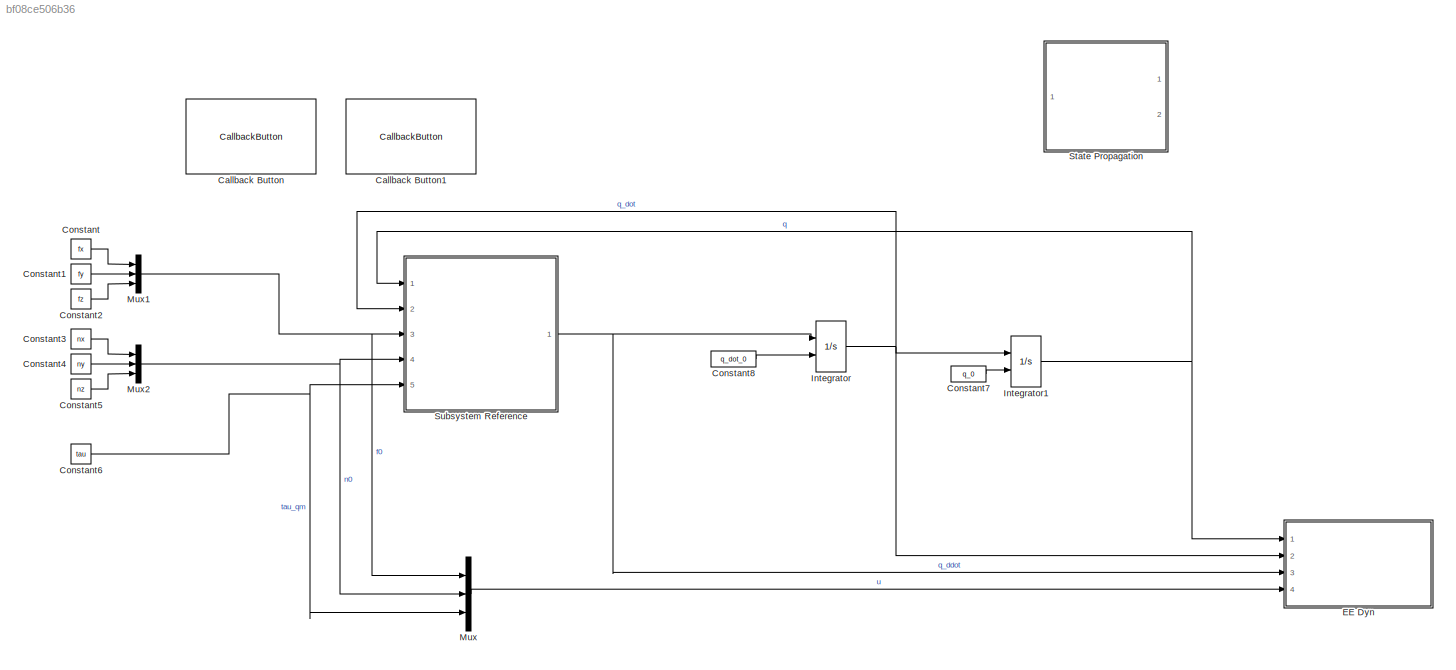
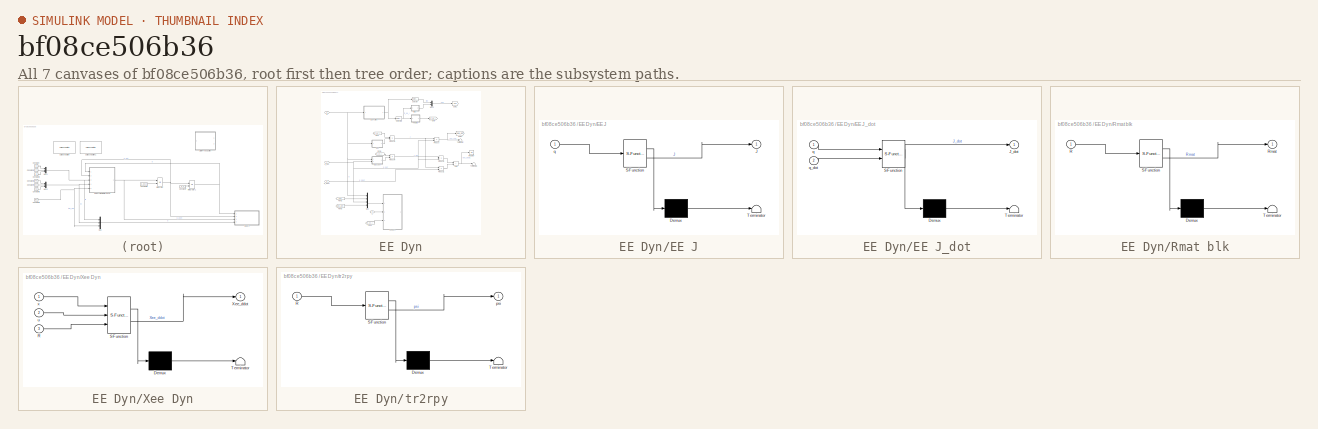
[diagram: thumbnail index - all 7 canvases of the model, root first then tree order]
MODEL slx_bf08ce506b36
KIND model
CONFIG AbsTol = auto
CONFIG EnableMultiTasking = off
CONFIG FixedStep = 0.01
CONFIG MaxStep = auto
CONFIG MinStep = auto
CONFIG RelTol = 1e-3
CONFIG SampleTimeConstraint = Unconstrained
CONFIG SolverName = ode23s
CONFIG StartTime = 0.0
CONFIG StopTime = 7
BLOCK [CallbackButton] Callback Button
  ButtonText = Load SpaceRobot
  ClickFcn = load('SC_2DoF.mat')\nsc.homeConfig;
BLOCK [CallbackButton] Callback Button1
  ButtonText = Animate results
  ClickFcn = close all\nsr.animate(out.q, 'fps', 17, 'rate', 1);
BLOCK [Constant] Constant
  Value = fx
BLOCK [Constant] Constant1
  Value = fy
BLOCK [Constant] Constant2
  Value = fz
BLOCK [Constant] Constant3
  Value = nx
BLOCK [Constant] Constant4
  Value = ny
BLOCK [Constant] Constant5
  Value = nz
BLOCK [Constant] Constant6
  Value = tau
BLOCK [Constant] Constant7
  Value = q_0
BLOCK [Constant] Constant8
  Value = q_dot_0
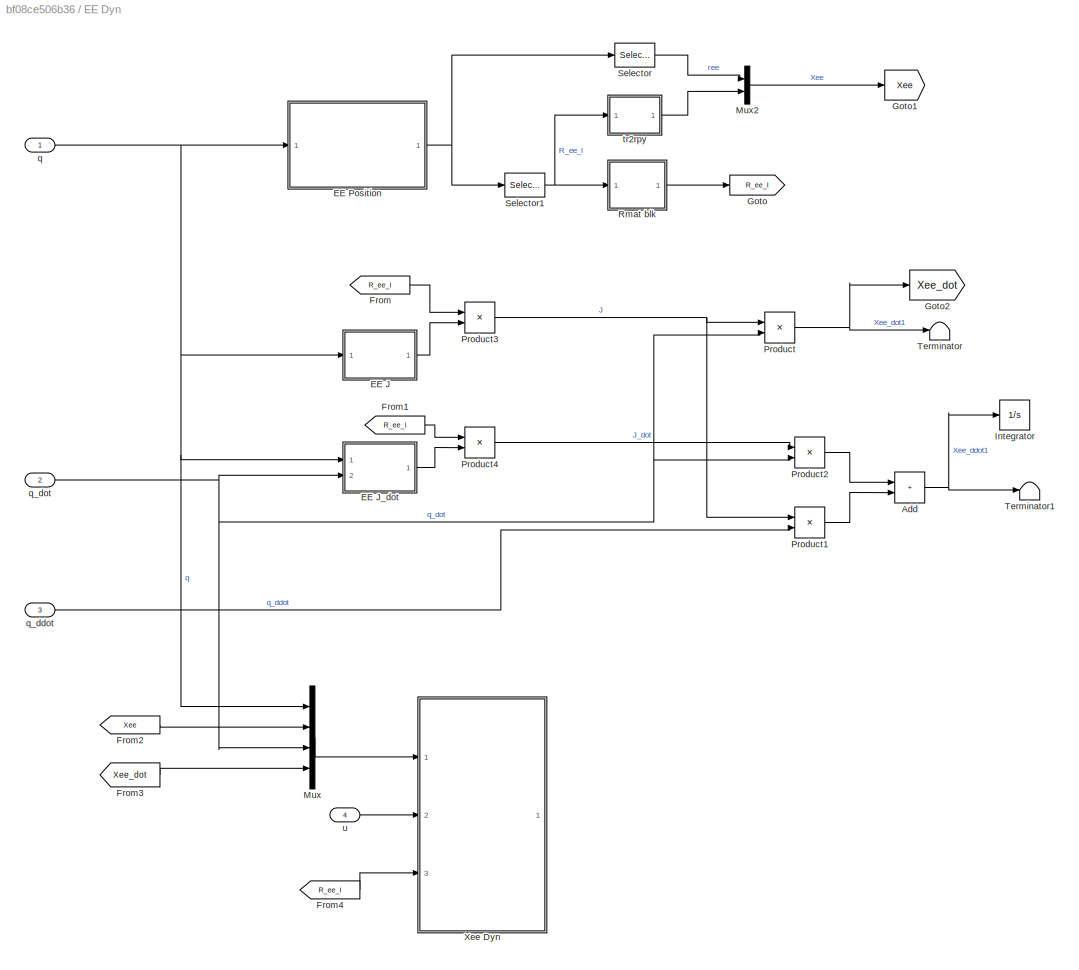
BLOCK [SubSystem] EE Dyn
  Ports = [4]
  RequestExecContextInheritance = off
BLOCK [Sum] EE Dyn/Add
  IconShape = rectangular
  Ports = [2, 1]
BLOCK [SubSystem] EE Dyn/EE J
  ErrorFcn = Stateflow.Translate.translate
  PermitHierarchicalResolution = ExplicitOnly
  Ports = [1, 1]
  RequestExecContextInheritance = off
  SFBlockType = MATLAB Function
  TreatAsAtomicUnit = on
BLOCK [Demux] EE Dyn/EE J/ Demux 
  Outputs = 1
  Ports = [1, 1]
BLOCK [S-Function] EE Dyn/EE J/ SFunction 
  EnableBusSupport = on
  FunctionName = sf_sfun
  PortCounts = [1 2]
  Ports = [1, 2]
  SFcnIsStateOwnerBlock = off
  SFunctionDeploymentMode = off
  Tag = Stateflow S-Function 3
BLOCK [Terminator] EE Dyn/EE J/ Terminator 
BLOCK [Outport] EE Dyn/EE J/J
BLOCK [Inport] EE Dyn/EE J/q
BLOCK [SubSystem] EE Dyn/EE J_dot
  ErrorFcn = Stateflow.Translate.translate
  PermitHierarchicalResolution = ExplicitOnly
  Ports = [2, 1]
  RequestExecContextInheritance = off
  SFBlockType = MATLAB Function
  TreatAsAtomicUnit = on
BLOCK [Demux] EE Dyn/EE J_dot/ Demux 
  Outputs = 1
  Ports = [1, 1]
BLOCK [S-Function] EE Dyn/EE J_dot/ SFunction 
  EnableBusSupport = on
  FunctionName = sf_sfun
  PortCounts = [2 2]
  Ports = [2, 2]
  SFcnIsStateOwnerBlock = off
  SFunctionDeploymentMode = off
  Tag = Stateflow S-Function 4
BLOCK [Terminator] EE Dyn/EE J_dot/ Terminator 
BLOCK [Outport] EE Dyn/EE J_dot/J_dot
BLOCK [Inport] EE Dyn/EE J_dot/q
BLOCK [Inport] EE Dyn/EE J_dot/q_dot
  Port = 2
BLOCK [SubSystem] EE Dyn/EE Position
  Ports = [1, 1]
  ReferencedSubsystem = GetTransform
  RequestExecContextInheritance = off
  SimulateUsing = Interpreted execution
  sourceBody = endeffector
  spaceRobot = sr
  targetBody = inertial
BLOCK [From] EE Dyn/From
  GotoTag = R_ee_I
BLOCK [From] EE Dyn/From1
  GotoTag = R_ee_I
BLOCK [From] EE Dyn/From2
  GotoTag = Xee
BLOCK [From] EE Dyn/From3
  GotoTag = Xee_dot
BLOCK [From] EE Dyn/From4
  GotoTag = R_ee_I
BLOCK [Goto] EE Dyn/Goto
  GotoTag = R_ee_I
BLOCK [Goto] EE Dyn/Goto1
  GotoTag = Xee
BLOCK [Goto] EE Dyn/Goto2
  GotoTag = Xee_dot
BLOCK [Integrator] EE Dyn/Integrator
  Ports = [1, 1]
BLOCK [Mux] EE Dyn/Mux
  DisplayOption = bar
  Ports = [4, 1]
BLOCK [Mux] EE Dyn/Mux2
  DisplayOption = bar
  Inputs = 2
  Ports = [2, 1]
BLOCK [Product] EE Dyn/Product
  Multiplication = Matrix(*)
  Ports = [2, 1]
BLOCK [Product] EE Dyn/Product1
  Multiplication = Matrix(*)
  Ports = [2, 1]
BLOCK [Product] EE Dyn/Product2
  Multiplication = Matrix(*)
  Ports = [2, 1]
BLOCK [Product] EE Dyn/Product3
  Multiplication = Matrix(*)
  Ports = [2, 1]
BLOCK [Product] EE Dyn/Product4
  Multiplication = Matrix(*)
  Ports = [2, 1]
BLOCK [SubSystem] EE Dyn/Rmat blk
  ErrorFcn = Stateflow.Translate.translate
  PermitHierarchicalResolution = ExplicitOnly
  Ports = [1, 1]
  RequestExecContextInheritance = off
  SFBlockType = MATLAB Function
  TreatAsAtomicUnit = on
BLOCK [Demux] EE Dyn/Rmat blk/ Demux 
  Outputs = 1
  Ports = [1, 1]
BLOCK [S-Function] EE Dyn/Rmat blk/ SFunction 
  EnableBusSupport = on
  FunctionName = sf_sfun
  PortCounts = [1 2]
  Ports = [1, 2]
  SFcnIsStateOwnerBlock = off
  SFunctionDeploymentMode = off
  Tag = Stateflow S-Function 5
BLOCK [Terminator] EE Dyn/Rmat blk/ Terminator 
BLOCK [Inport] EE Dyn/Rmat blk/R
BLOCK [Outport] EE Dyn/Rmat blk/Rmat
BLOCK [Selector] EE Dyn/Selector
  IndexOptions = Index vector (dialog),Index vector (dialog)
  Indices = [1:3],4
  InputPortWidth = [4 4]
  NumberOfDimensions = 2
  OutputSizes = 1,1
  Ports = [1, 1]
BLOCK [Selector] EE Dyn/Selector1
  IndexOptions = Index vector (dialog),Index vector (dialog)
  Indices = [1:3],[1:3]
  InputPortWidth = [4 4]
  NumberOfDimensions = 2
  OutputSizes = 1,1
  Ports = [1, 1]
BLOCK [Terminator] EE Dyn/Terminator
BLOCK [Terminator] EE Dyn/Terminator1
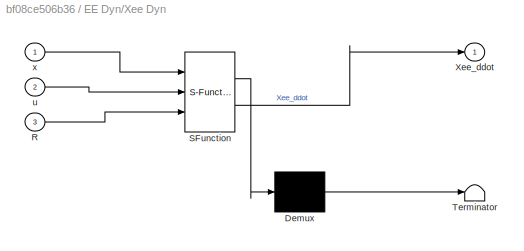
BLOCK [SubSystem] EE Dyn/Xee Dyn
  ErrorFcn = Stateflow.Translate.translate
  PermitHierarchicalResolution = ExplicitOnly
  Ports = [3, 1]
  RequestExecContextInheritance = off
  SFBlockType = MATLAB Function
  TreatAsAtomicUnit = on
BLOCK [Demux] EE Dyn/Xee Dyn/ Demux 
  Outputs = 1
  Ports = [1, 1]
BLOCK [S-Function] EE Dyn/Xee Dyn/ SFunction 
  EnableBusSupport = on
  FunctionName = sf_sfun
  PortCounts = [3 2]
  Ports = [3, 2]
  SFcnIsStateOwnerBlock = off
  SFunctionDeploymentMode = off
  Tag = Stateflow S-Function 6
BLOCK [Terminator] EE Dyn/Xee Dyn/ Terminator 
BLOCK [Inport] EE Dyn/Xee Dyn/R
  Port = 3
BLOCK [Outport] EE Dyn/Xee Dyn/Xee_ddot
BLOCK [Inport] EE Dyn/Xee Dyn/u
  Port = 2
BLOCK [Inport] EE Dyn/Xee Dyn/x
BLOCK [Inport] EE Dyn/q
BLOCK [Inport] EE Dyn/q_ddot
  Port = 3
BLOCK [Inport] EE Dyn/q_dot
  Port = 2
BLOCK [SubSystem] EE Dyn/tr2rpy
  ErrorFcn = Stateflow.Translate.translate
  PermitHierarchicalResolution = ExplicitOnly
  Ports = [1, 1]
  RequestExecContextInheritance = off
  SFBlockType = MATLAB Function
  TreatAsAtomicUnit = on
BLOCK [Demux] EE Dyn/tr2rpy/ Demux 
  Outputs = 1
  Ports = [1, 1]
BLOCK [S-Function] EE Dyn/tr2rpy/ SFunction 
  EnableBusSupport = on
  FunctionName = sf_sfun
  PortCounts = [1 2]
  Ports = [1, 2]
  SFcnIsStateOwnerBlock = off
  SFunctionDeploymentMode = off
  Tag = Stateflow S-Function 7
BLOCK [Terminator] EE Dyn/tr2rpy/ Terminator 
BLOCK [Inport] EE Dyn/tr2rpy/R
BLOCK [Outport] EE Dyn/tr2rpy/psi
BLOCK [Inport] EE Dyn/u
  Port = 4
BLOCK [Integrator] Integrator
  InitialConditionSource = external
  Ports = [2, 1]
BLOCK [Integrator] Integrator1
  InitialConditionSource = external
  Ports = [2, 1]
BLOCK [Mux] Mux
  DisplayOption = bar
  Inputs = 3
  Ports = [3, 1]
BLOCK [Mux] Mux1
  DisplayOption = bar
  Inputs = 3
  Ports = [3, 1]
BLOCK [Mux] Mux2
  DisplayOption = bar
  Inputs = 3
  Ports = [3, 1]
BLOCK [SubSystem] State Propagation
  Commented = on
  Ports = [1, 2]
  ReferencedSubsystem = StatePropagation
  RequestExecContextInheritance = off
  q_0 = q_0
  q_dot_0 = q_dot_0
  spaceRobot = sr
BLOCK [SubSystem] Subsystem Reference
  Ports = [5, 1]
  ReferencedSubsystem = ForwardDynamics
  RequestExecContextInheritance = off
  SimulateUsing = Interpreted execution
  spaceRobot = sr
LINE Constant1:1 -> Mux1:2
LINE Constant2:1 -> Mux1:3
LINE Constant3:1 -> Mux2:1
LINE Constant4:1 -> Mux2:2
LINE Constant5:1 -> Mux2:3
NET Constant6:1 -> Mux:3, Subsystem Reference:5
LINE Constant7:1 -> Integrator1:2
LINE Constant8:1 -> Integrator:2
LINE Constant:1 -> Mux1:1
NET EE Dyn/Add:1 -> EE Dyn/Integrator:1, EE Dyn/Terminator1:1
LINE EE Dyn/EE J:1 -> EE Dyn/Product3:2
LINE EE Dyn/EE J_dot:1 -> EE Dyn/Product4:2
NET EE Dyn/EE Position:1 -> EE Dyn/Selector1:1, EE Dyn/Selector:1
LINE EE Dyn/From1:1 -> EE Dyn/Product4:1
LINE EE Dyn/From2:1 -> EE Dyn/Mux:2
LINE EE Dyn/From3:1 -> EE Dyn/Mux:4
LINE EE Dyn/From4:1 -> EE Dyn/Xee Dyn:3
LINE EE Dyn/From:1 -> EE Dyn/Product3:1
LINE EE Dyn/Mux2:1 -> EE Dyn/Goto1:1
LINE EE Dyn/Mux:1 -> EE Dyn/Xee Dyn:1
LINE EE Dyn/Product1:1 -> EE Dyn/Add:2
LINE EE Dyn/Product2:1 -> EE Dyn/Add:1
NET EE Dyn/Product3:1 -> EE Dyn/Product1:1, EE Dyn/Product:1
LINE EE Dyn/Product4:1 -> EE Dyn/Product2:1
NET EE Dyn/Product:1 -> EE Dyn/Goto2:1, EE Dyn/Terminator:1
LINE EE Dyn/Rmat blk:1 -> EE Dyn/Goto:1
NET EE Dyn/Selector1:1 -> EE Dyn/Rmat blk:1, EE Dyn/tr2rpy:1
LINE EE Dyn/Selector:1 -> EE Dyn/Mux2:1
NET EE Dyn/q:1 -> EE Dyn/EE J:1, EE Dyn/EE J_dot:1, EE Dyn/EE Position:1, EE Dyn/Mux:1
LINE EE Dyn/q_ddot:1 -> EE Dyn/Product1:2
NET EE Dyn/q_dot:1 -> EE Dyn/EE J_dot:2, EE Dyn/Mux:3, EE Dyn/Product2:2, EE Dyn/Product:2
LINE EE Dyn/tr2rpy:1 -> EE Dyn/Mux2:2
LINE EE Dyn/u:1 -> EE Dyn/Xee Dyn:2
NET Integrator1:1 -> EE Dyn:1, Subsystem Reference:1
NET Integrator:1 -> EE Dyn:2, Integrator1:1, Subsystem Reference:2
NET Mux1:1 -> Mux:1, Subsystem Reference:3
NET Mux2:1 -> Mux:2, Subsystem Reference:4
LINE Mux:1 -> EE Dyn:4
NET Subsystem Reference:1 -> EE Dyn:3, Integrator:1
note: NET lines group one-source signal fan-out (src -> all destinations, sorted); 1:1 wires keep LINE
CHART EE Dyn/EE J states=1 transitions=1
  STATE_LABEL 'eML_blk_kernel()'
  STATE_LABEL "SCRIPT:\nfunction J = fcn(q)\nsr_info = SR2_info();\n\n% 1 - Kinematics\n[Rb, Ra, Rm] = RFunc_SR2(q);\nRm = reshape(Rm, 3, 3, []); % Split Rm to nk 3x3 arrays\n\n% 2 - Kinetics\n[~, ~, ~, A, ~] = Kin(sr_info, q, zeros(8, 1), zeros(8, 1), {Rb, Ra, Rm});\n\n% 3 - J\nJ = Jacobian('endeffector', sr_info, A, {Rb, Ra});\n\n% J_dot = Jacobian_dot('endeffector', sr_info, A, A_dot, {Rb, Ra}, wb, Omega);\n\nend"
CHART EE Dyn/EE J_dot states=1 transitions=1
  STATE_LABEL 'eML_blk_kernel()'
  STATE_LABEL "SCRIPT:\nfunction J_dot = fcn(q, q_dot)\nsr_info = SR2_info();\n\n% 1 - Kinematics\n[Rb, Ra, Rm] = RFunc_SR2(q);\nRm = reshape(Rm, 3, 3, []); % Split Rm to nk 3x3 arrays\n\n% 2 - Kinetics\n[t, ~, Omega, A, A_dot] = Kin(sr_info, q, q_dot, zeros(8, 1), {Rb, Ra, Rm});\nwb = t{1}(4:6);\n\n% 3 - J_dot\nJ_dot = Jacobian_dot('endeffector', sr_info, A, A_dot, {Rb, Ra}, wb, Omega);\n"
CHART EE Dyn/Rmat blk states=1 transitions=1
  STATE_LABEL 'eML_blk_kernel()'
  STATE_LABEL 'SCRIPT:\nfunction Rmat = fcn(R)\n\nRmat = blkdiag(R, R);'
CHART EE Dyn/Xee Dyn states=1 transitions=1
  STATE_LABEL 'eML_blk_kernel()'
  STATE_LABEL 'SCRIPT:\nfunction Xee_ddot = fcn(x, u, R)\n\n%% Load params\nsr_info = SR2_info();\n\nq = x(1:8);\nq_ee = x(9:14);\n\nq_dot = x(15:22);\nq_ee_dot = x(23:28);\n\n%%\n% 1 - Kinematics\n[Rb, Ra, Rm] = RFunc_SR2(q);\nRm = reshape(Rm, 3, 3, []); % Split Rm to nk 3x3 arrays\n\n% 2 - Kinetics\n[t, ~, Omega, A, A_dot] = Kin(sr_info, q, q_dot, zeros(8, 1), {Rb, Ra, Rm});\n\n% 3 - C\nwb = t{1}(4:6);\nC = CorMat(sr_info, wb, Omeg...<+327ch>'
CHART EE Dyn/tr2rpy states=1 transitions=1
  STATE_LABEL 'eML_blk_kernel()'
  STATE_LABEL "SCRIPT:\nfunction psi = fcn(R)\n% Computes euler angle from rotation matrix\n\npsi = zeros(3, 1);\n\ntemp = rotm2eul(R, 'ZYX');\npsi(1) = temp(3);\npsi(2) = temp(2);\npsi(3) = temp(1);\n"
CHART  states=0 transitions=0
CHART  states=0 transitions=0
CHART  states=0 transitions=0
CHART  states=0 transitions=0
CHART  states=0 transitions=0
